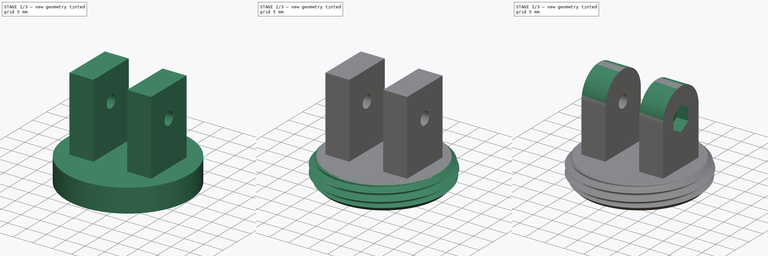
[diagram: build sequence overview — one tinted view per stage of 3, left to right]
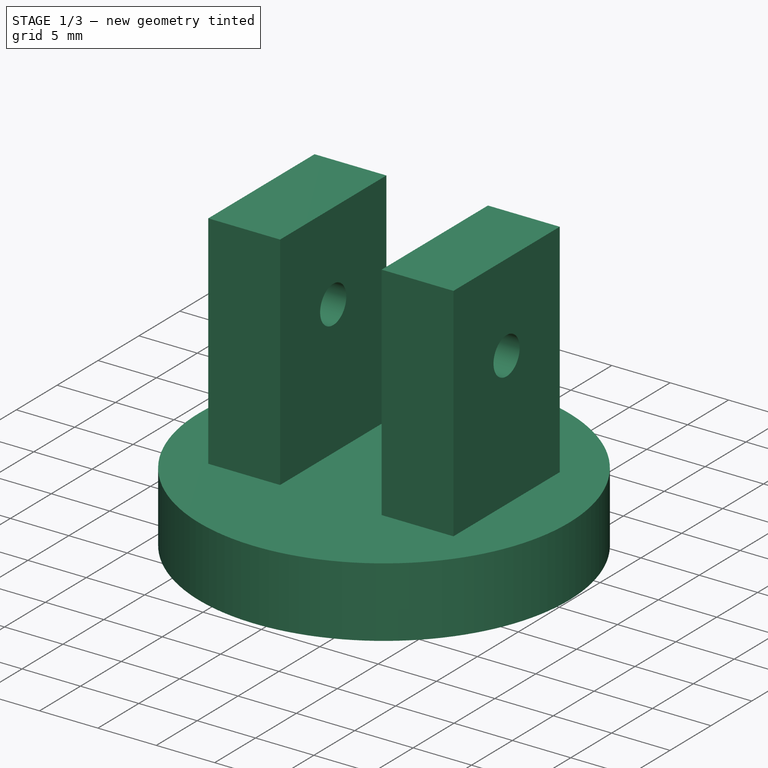
[diagram: stage 1 of 3 — iso view after this stage's code; geometry added in this stage tinted green]
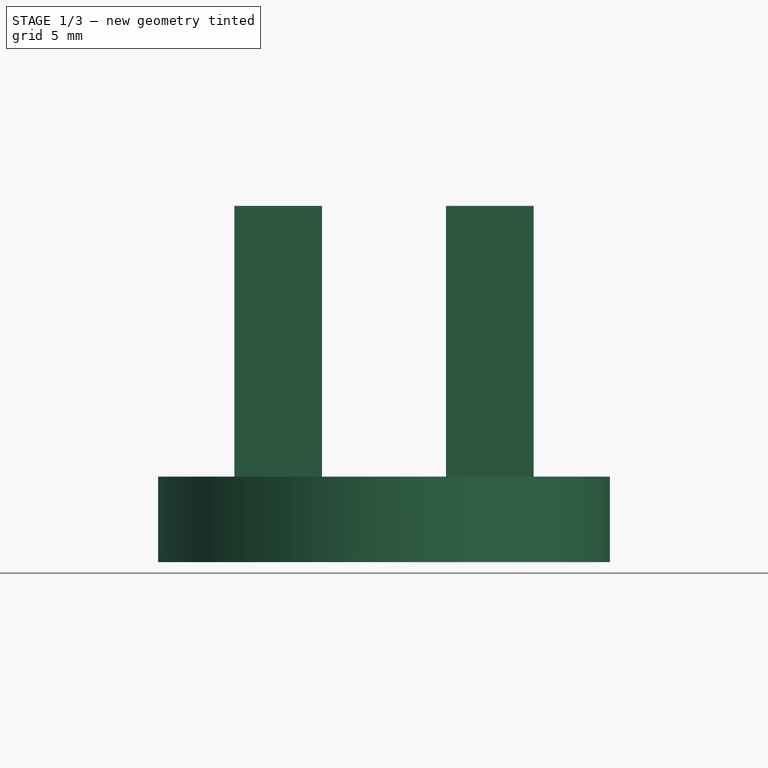
[diagram: stage 1 of 3 — front view after this stage's code; geometry added in this stage tinted green]
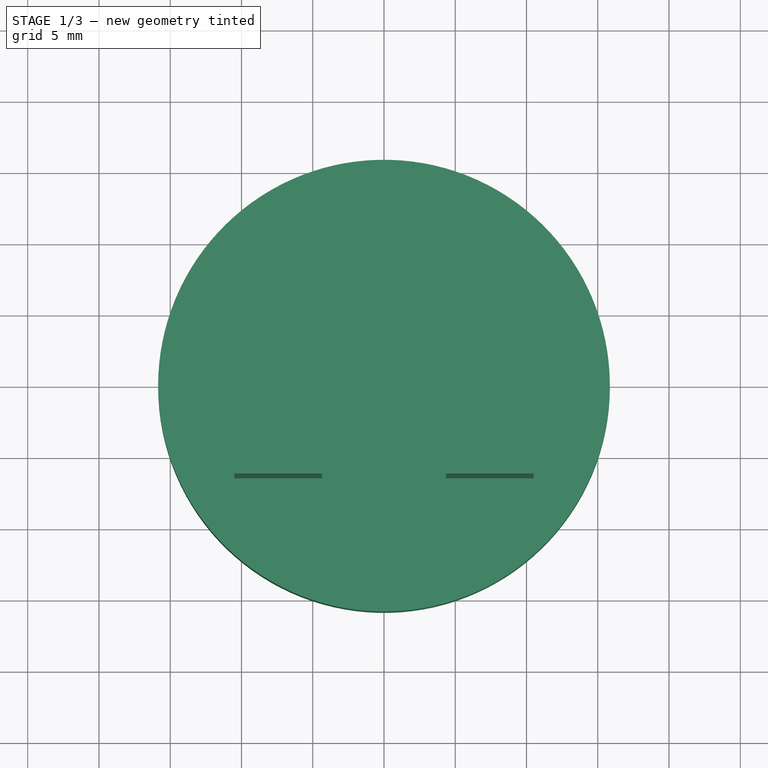
[diagram: stage 1 of 3 — top view after this stage's code; geometry added in this stage tinted green]
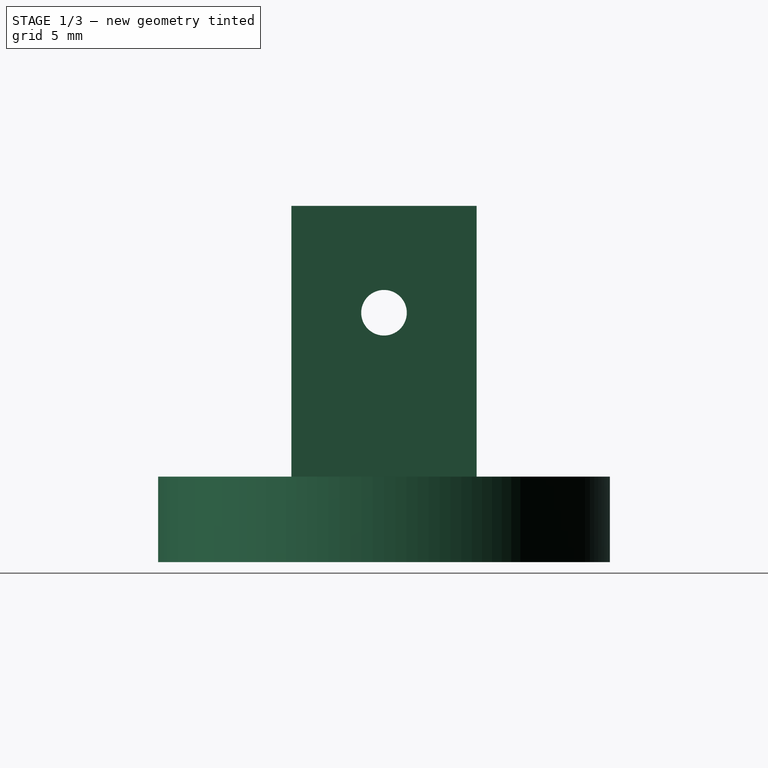
[diagram: stage 1 of 3 — right view after this stage's code; geometry added in this stage tinted green]
FCSTD DOCUMENT  (FreeCAD 0.18R16117 (Git))
Label: Slider
License: CreativeCommons Attribution-ShareAlike
LicenseURL: http://creativecommons.org/licenses/by-sa/4.0/
objects: Sketcher::SketchObject×7, PartDesign::Pocket×4, PartDesign::Point×3, PartDesign::Pad×1, Part::Helix×1, PartDesign::Groove×1, PartDesign::ShapeBinder×1, PartDesign::SubtractivePipe×1, PartDesign::Fillet×1, PartDesign::Body×1
note: 28 computed .brp shape members not serialized (recipe doc carries the construction recipe); baked Part::Feature solids carry a one-line shape summary decoded from their .brp

FEATURE [Sketcher::SketchObject] Sketch
  MapMode = 5
  Support = -> [XY_Plane]
  sketch-geometry (1):
    g0: Circle CenterX=0 CenterY=0 CenterZ=0 NormalX=0 NormalY=0 NormalZ=1 AngleXU=0 Radius=15.85
  constraints (2):
    c: Coincident(g0,g-1)
    c: Radius(g0) = 15.85
FEATURE [PartDesign::Pad] Pad  label="Threadplate"
  Length = 25
  Length2 = 100
  Profile = -> Sketch
  Refine = true
  Type = 0
FEATURE [PartDesign::Point] DatumPoint
  AttacherType = Attacher::AttachEnginePoint
  MapMode = 37
  Placement = pos=(15.85,0,25) rot=(0,0,1;0rad)
  Support = -> [Pad]
FEATURE [Sketcher::SketchObject] Sketch001
  ExternalGeometry = -> [DatumPoint]
  MapMode = 5
  Placement = pos=(0,0,25) rot=(0,0,1;0rad)
  Support = -> [Pad]
  sketch-geometry (10):
    g0: Circle CenterX=0 CenterY=0 CenterZ=0 NormalX=0 NormalY=0 NormalZ=1 AngleXU=0 Radius=16.35
    g1: GeomPoint X=16.35 Y=0 Z=0
    g2: LineSegment StartX=-10.5 StartY=6.5 StartZ=0 EndX=-4.35 EndY=6.5 EndZ=0
    g3: LineSegment StartX=-4.35 StartY=6.5 StartZ=0 EndX=-4.35 EndY=-6.5 EndZ=0
    g4: LineSegment StartX=-4.35 StartY=-6.5 StartZ=0 EndX=-10.5 EndY=-6.5 EndZ=0
    g5: LineSegment StartX=-10.5 StartY=-6.5 StartZ=0 EndX=-10.5 EndY=6.5 EndZ=0
    g6: LineSegment StartX=4.35 StartY=6.5 StartZ=0 EndX=10.5 EndY=6.5 EndZ=0
    g7: LineSegment StartX=10.5 StartY=6.5 StartZ=0 EndX=10.5 EndY=-6.5 EndZ=0
    g8: LineSegment StartX=10.5 StartY=-6.5 StartZ=0 EndX=4.35 EndY=-6.5 EndZ=0
    g9: LineSegment StartX=4.35 StartY=-6.5 StartZ=0 EndX=4.35 EndY=6.5 EndZ=0
  constraints (27):
    c: Coincident(g0,g-1)
    c: PointOnObject(g1,g-1)
    c: PointOnObject(g1,g0)
    c: DistanceX(g-3,g1) = 0.5
    c: Coincident(g2,g3)
    c: Coincident(g3,g4)
    c: Coincident(g4,g5)
    c: Coincident(g5,g2)
    c: Horizontal(g2)
    c: Horizontal(g4)
    c: Vertical(g3)
    c: Vertical(g5)
    c: Coincident(g6,g7)
    c: Coincident(g7,g8)
    c: Coincident(g8,g9)
    c: Coincident(g9,g6)
    c: Horizontal(g6)
    c: Horizontal(g8)
    c: Vertical(g7)
    c: Vertical(g9)
    c: Equal(g6,g2)
    c: Equal(g5,g7)
    c: Symmetric(g2,g4,g-1)
    c: Symmetric(g2,g6,g-2)
    c: DistanceY(g7,g7) = 13
    c: DistanceX(g2,g6) = 8.7
    c: DistanceX(g4,g7) = 21
FEATURE [PartDesign::Pocket] Pocket  label="Rollholder"
  BaseFeature = -> Pad
  Length = 19
  Length2 = 100
  Profile = -> Sketch001
  Refine = true
  Type = 0
FEATURE [Sketcher::SketchObject] Sketch002
  ExternalGeometry = -> [DatumPoint]
  MapMode = 5
  Placement = pos=(0,0,0) rot=(0.57735,0.57735,0.57735;2.0944rad)
  Support = -> [YZ_Plane]
  sketch-geometry (1):
    g0: Circle CenterX=0 CenterY=17.5 CenterZ=0 NormalX=0 NormalY=0 NormalZ=1 AngleXU=0 Radius=1.6
  constraints (3):
    c: PointOnObject(g0,g-2)
    c: DistanceY(g0,g-3) = 7.5
    c: Radius(g0) = 1.6
FEATURE [PartDesign::Pocket] Pocket001  label="Bore"
  BaseFeature = -> Pocket
  Length = 26
  Length2 = 100
  Midplane = true
  Profile = -> Sketch002
  Refine = true
  Type = 0
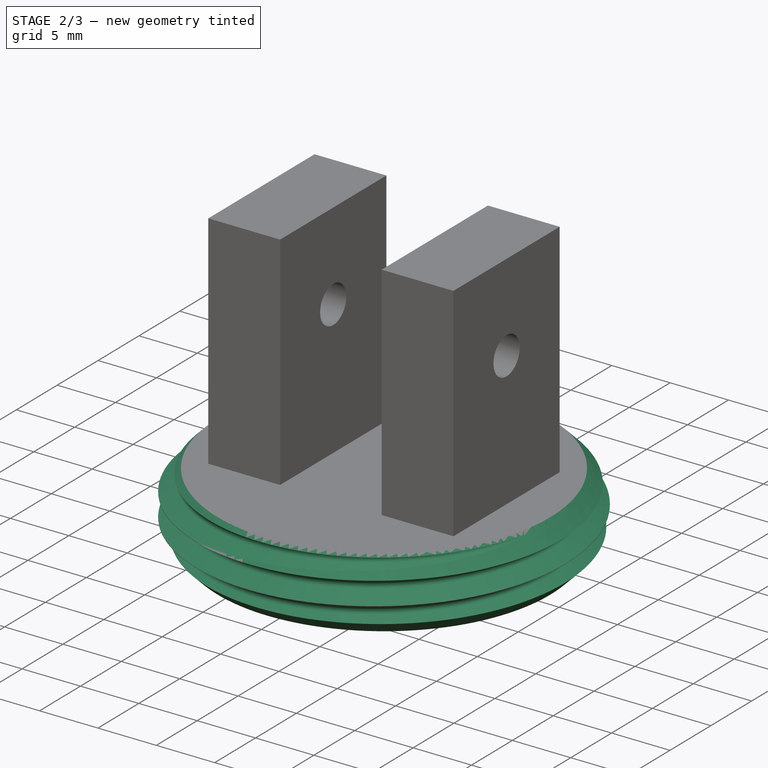
[diagram: stage 2 of 3 — iso view after this stage's code; geometry added in this stage tinted green]
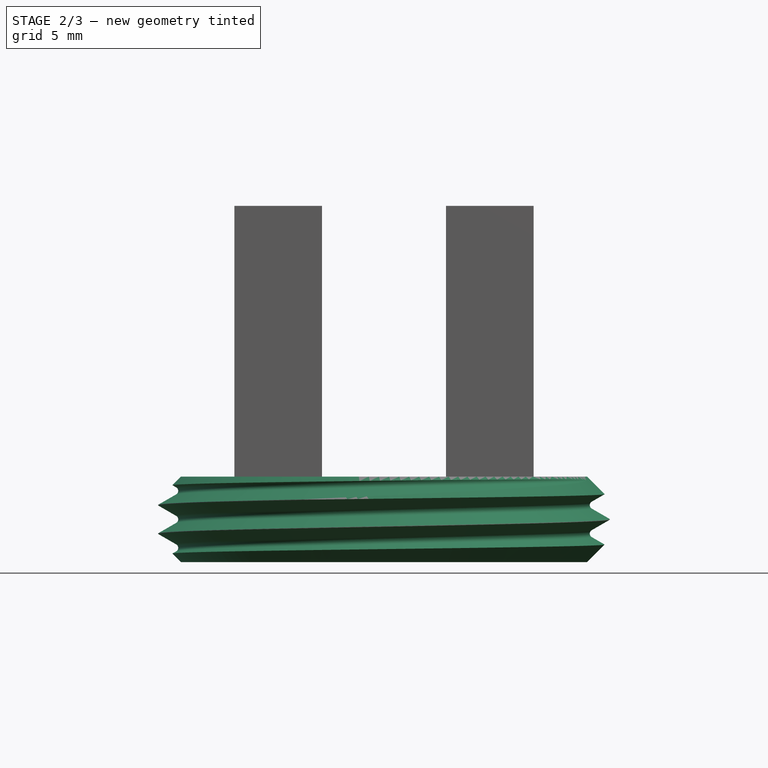
[diagram: stage 2 of 3 — front view after this stage's code; geometry added in this stage tinted green]
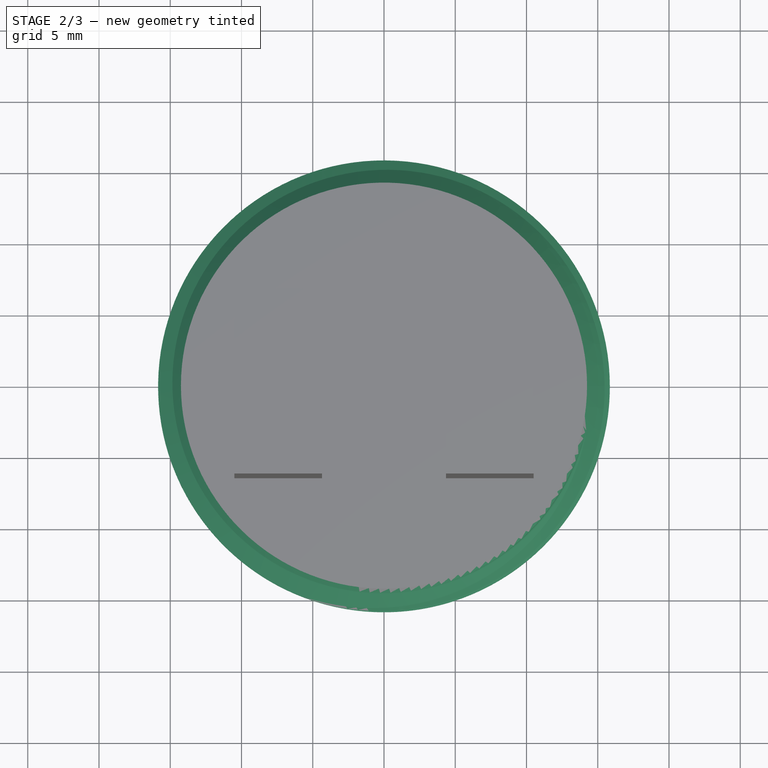
[diagram: stage 2 of 3 — top view after this stage's code; geometry added in this stage tinted green]
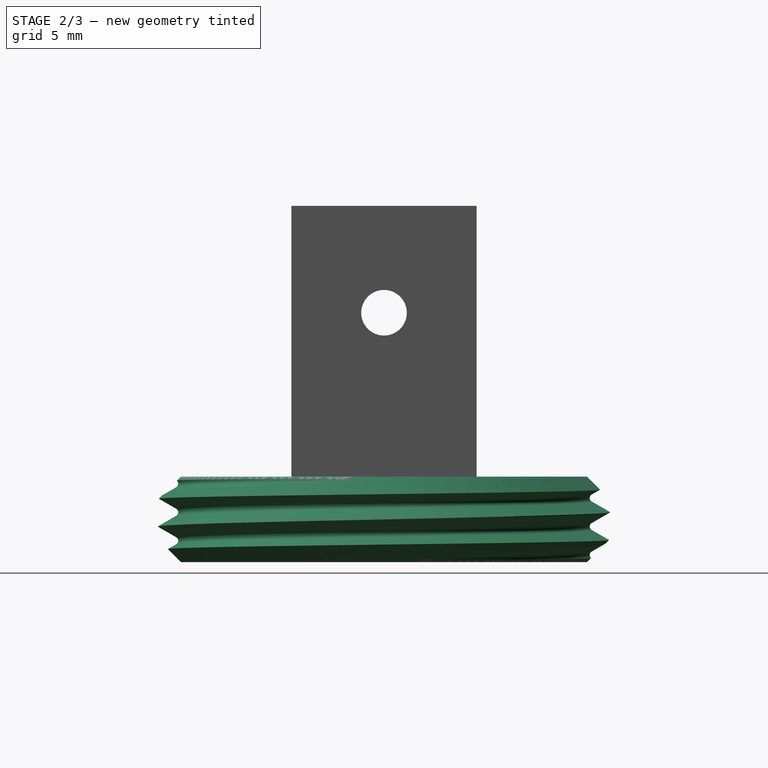
[diagram: stage 2 of 3 — right view after this stage's code; geometry added in this stage tinted green]
FEATURE [Part::Helix] Helix
  Angle = 0
  AttacherType = Attacher::AttachEngine3D
  Height = 10
  LocalCoord = 0
  Pitch = 2
  Placement = pos=(0,0,-2) rot=(0,0,1;0rad)
  Radius = 15.351
  Style = 1
FEATURE [PartDesign::Point] DatumPoint001
  AttacherType = Attacher::AttachEnginePoint
  MapMode = 37
  Placement = pos=(15.85,0,6) rot=(0,0,1;0rad)
  Support = -> [Pocket001]
FEATURE [PartDesign::Point] DatumPoint002
  AttacherType = Attacher::AttachEnginePoint
  MapMode = 37
  Placement = pos=(15.85,0,0) rot=(0,0,1;0rad)
  Support = -> [Pocket001]
FEATURE [Sketcher::SketchObject] Sketch003
  ExternalGeometry = -> [DatumPoint001,DatumPoint002]
  MapMode = 5
  Placement = pos=(0,0,0) rot=(1,0,0;1.5708rad)
  Support = -> [XZ_Plane]
  sketch-geometry (7):
    g0: LineSegment StartX=14.15 StartY=6.1 StartZ=0 EndX=16.85 EndY=3.4 EndZ=0
    g1: LineSegment StartX=16.85 StartY=3.4 StartZ=0 EndX=16.85 EndY=2.6 EndZ=0
    g2: LineSegment StartX=16.85 StartY=2.6 StartZ=0 EndX=14.15 EndY=-0.1 EndZ=0
    g3: LineSegment StartX=14.15 StartY=-0.1 StartZ=0 EndX=17.85 EndY=-0.1 EndZ=0
    g4: LineSegment StartX=17.85 StartY=-0.1 StartZ=0 EndX=17.85 EndY=6.1 EndZ=0
    g5: LineSegment StartX=17.85 StartY=6.1 StartZ=0 EndX=14.15 EndY=6.1 EndZ=0
    g6: LineSegment [constr] StartX=15.85 StartY=6 StartZ=0 EndX=15.85 EndY=4.4 EndZ=0
  constraints (21):
    c: Coincident(g0,g1)
    c: Vertical(g1)
    c: Coincident(g1,g2)
    c: Coincident(g2,g3)
    c: Horizontal(g3)
    c: Coincident(g3,g4)
    c: Vertical(g4)
    c: Coincident(g4,g5)
    c: Coincident(g5,g0)
    c: Horizontal(g5)
    c: Equal(g3,g5)
    c: Equal(g2,g0)
    c: Angle(g3,g2) = 0.785398
    c: DistanceY(g3,g-4) = 0.1
    c: DistanceY(g-3,g4) = 0.1
    c: Coincident(g6,g-3)
    c: Vertical(g6)
    c: DistanceY(g6,g6) = 1.6
    c: PointOnObject(g6,g0)
    c: DistanceX(g6,g0) = 1
    c: DistanceX(g0,g4) = 1
FEATURE [PartDesign::Groove] Groove  label="Thread-Champfer"
  Angle = 360
  Axis = (0,0,1)
  Base = (0,0,0)
  BaseFeature = -> Pocket001
  Profile = -> Sketch003
  ReferenceAxis = -> Sketch003 [V_Axis]
  Refine = true
FEATURE [Sketcher::SketchObject] Sketch004
  MapMode = 5
  Placement = pos=(0,0,0) rot=(1,0,0;1.5708rad)
  Support = -> [XZ_Plane]
  sketch-geometry (8):
    g0: LineSegment StartX=15.881 StartY=-1 StartZ=0 EndX=15.881 EndY=-3 EndZ=0
    g1: ArcOfCircle CenterX=14.7289 CenterY=-2 CenterZ=0 NormalX=0 NormalY=0 NormalZ=1 AngleXU=0 Radius=0.29 StartAngle=2.0944 EndAngle=4.18879
    g2: LineSegment StartX=14.5839 StartY=-2.25115 StartZ=0 EndX=15.881 EndY=-3 EndZ=0
    g3: LineSegment StartX=14.5839 StartY=-1.74885 StartZ=0 EndX=15.881 EndY=-1 EndZ=0
    g4: LineSegment [constr] StartX=15.881 StartY=-1 StartZ=0 EndX=14.1489 EndY=-2 EndZ=0
    g5: LineSegment [constr] StartX=14.1489 StartY=-2 StartZ=0 EndX=15.881 EndY=-3 EndZ=0
    g6: GeomPoint X=15.16 Y=-2 Z=0
    g7: LineSegment [constr] StartX=14.4389 StartY=-2 StartZ=0 EndX=15.881 EndY=-2 EndZ=0
  constraints (22):
    c: Vertical(g0)
    c: Tangent(g3,g1) = 1.5708
    c: Tangent(g2,g1) = -1.5708
    c: Angle(g2,g3) = 1.0472
    c: Radius(g1) = 0.29
    c: Coincident(g4,g0)
    c: Coincident(g5,g4)
    c: Coincident(g5,g0)
    c: Equal(g5,g4)
    c: Equal(g4,g0)
    c: DistanceY(g4,g-1) = 2
    c: Coincident(g0,g3)
    c: Coincident(g2,g0)
    c: PointOnObject(g1,g5)
    c: DistanceY(g0,g0) = 2
    c: DistanceX(g-1,g6) = 15.16
    c: PointOnObject(g7,g1)
    c: PointOnObject(g7,g0)
    c: Horizontal(g7)
    c: PointOnObject(g6,g7)
    c: DistanceX(g6,g0) = 0.721
    c: PointOnObject(g4,g7)
FEATURE [PartDesign::ShapeBinder] CopyHelix
  Placement = pos=(0,0,-2) rot=(0,0,1;0rad)
  TraceSupport = false
FEATURE [PartDesign::SubtractivePipe] SubtractivePipe
  AuxilleryCurvelinear = true
  AuxillerySpineTangent = false
  BaseFeature = -> Groove
  Binormal = (0,0,0)
  Mode = 2
  Profile = -> Sketch004
  Refine = true
  Spine = -> CopyHelix [Edge1,Edge2,Edge3,Edge4,Edge5]
  SpineTangent = false
  Transformation = 0
  Transition = 0
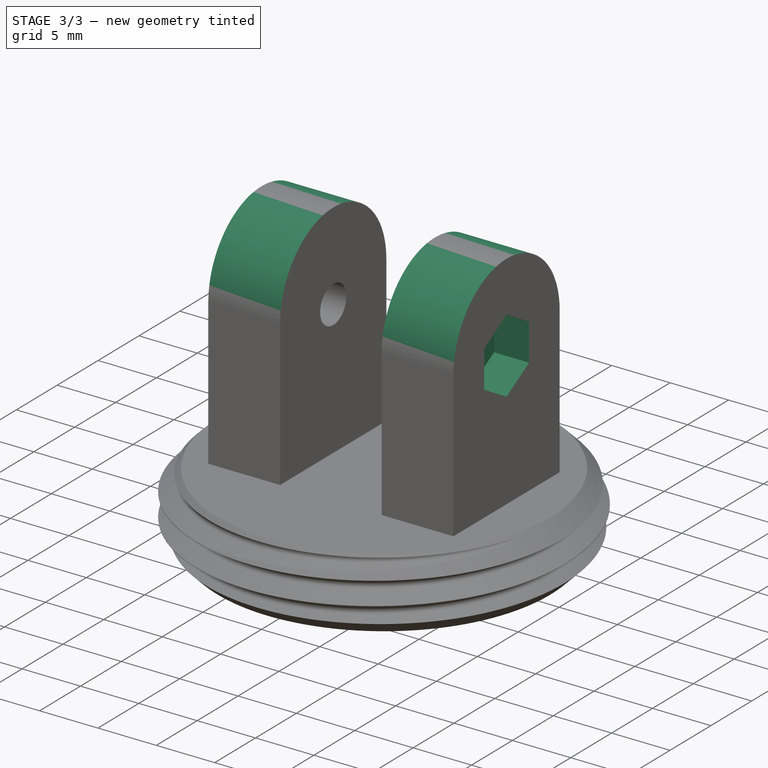
[diagram: stage 3 of 3 — iso view after this stage's code; geometry added in this stage tinted green]
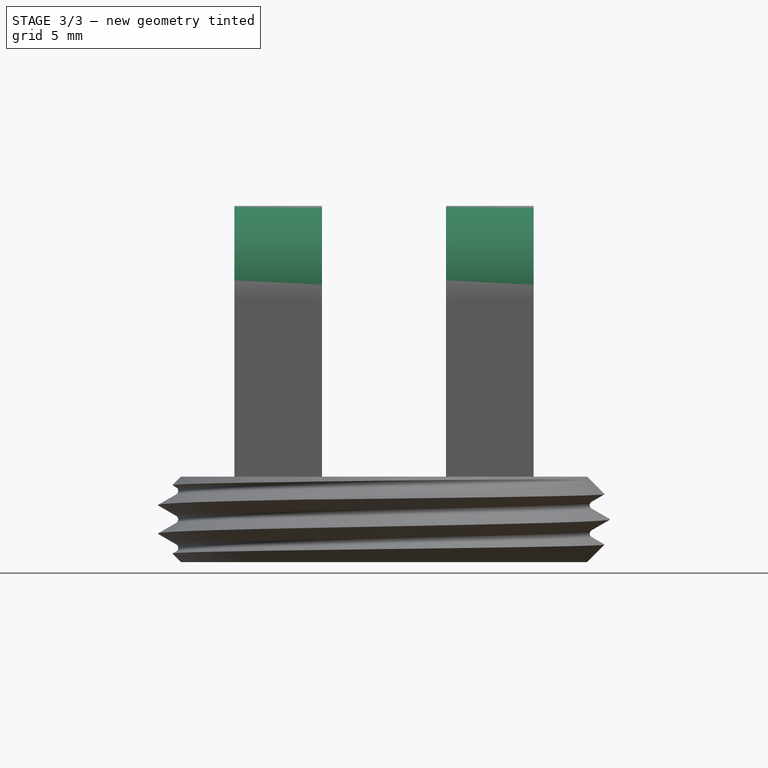
[diagram: stage 3 of 3 — front view after this stage's code; geometry added in this stage tinted green]
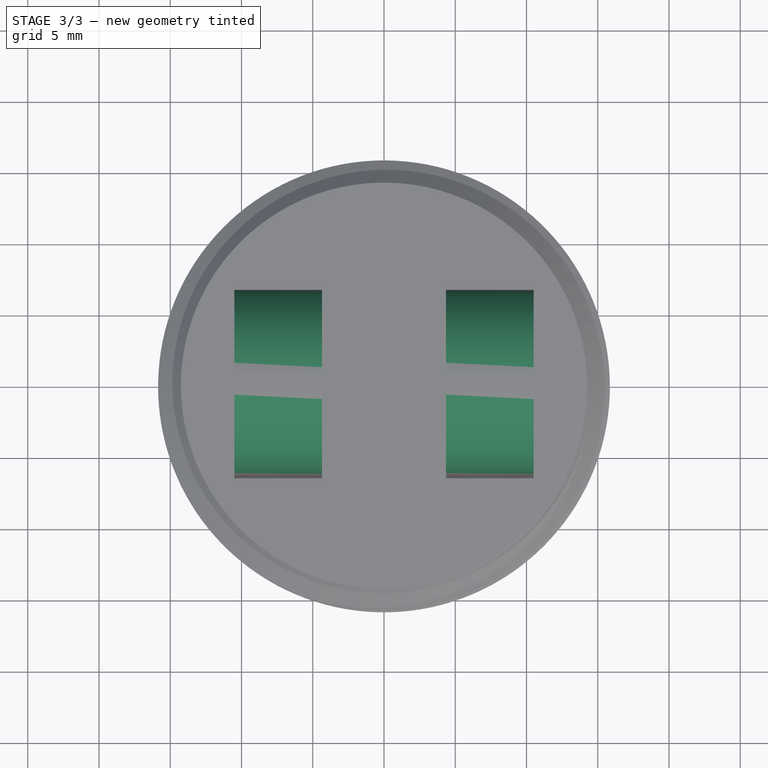
[diagram: stage 3 of 3 — top view after this stage's code; geometry added in this stage tinted green]
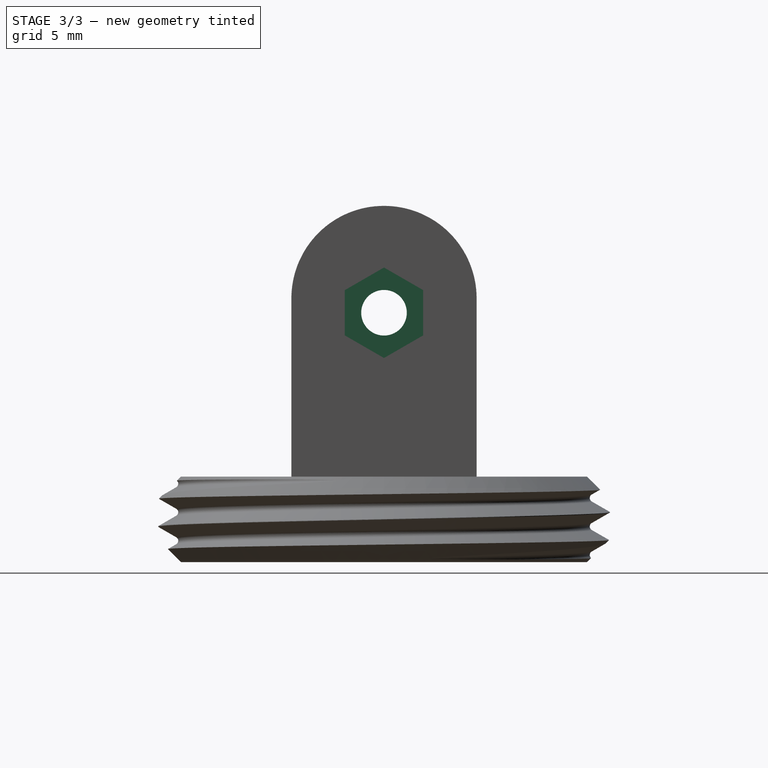
[diagram: stage 3 of 3 — right view after this stage's code; geometry added in this stage tinted green]
FEATURE [PartDesign::Fillet] Fillet  label="FilletByRoll"
  Base = -> SubtractivePipe [Edge58,Edge50,Edge40,Edge48]
  BaseFeature = -> SubtractivePipe
  Radius = 6.49
FEATURE [Sketcher::SketchObject] Sketch005
  ExternalGeometry = -> [Fillet]
  MapMode = 5
  Placement = pos=(-10.5,0,0) rot=(0.57735,-0.57735,-0.57735;2.0944rad)
  Support = -> [Fillet]
  sketch-geometry (1):
    g0: Circle CenterX=0 CenterY=17.5 CenterZ=0 NormalX=0 NormalY=0 NormalZ=1 AngleXU=0 Radius=3
  constraints (2):
    c: Coincident(g0,g-3)
    c: Radius(g0) = 3
FEATURE [PartDesign::Pocket] Pocket002
  BaseFeature = -> Fillet
  Length = 3
  Length2 = 100
  Profile = -> Sketch005
  Refine = true
  Type = 0
FEATURE [Sketcher::SketchObject] Sketch006
  ExternalGeometry = -> [Pocket002]
  MapMode = 5
  Placement = pos=(10.5,0,0) rot=(0.57735,0.57735,0.57735;2.0944rad)
  Support = -> [Pocket002]
  sketch-geometry (7):
    g0: LineSegment StartX=0 StartY=20.6754 StartZ=0 EndX=-2.75 EndY=19.0877 EndZ=0
    g1: LineSegment StartX=-2.75 StartY=19.0877 StartZ=0 EndX=-2.75 EndY=15.9123 EndZ=0
    g2: LineSegment StartX=-2.75 StartY=15.9123 StartZ=0 EndX=0 EndY=14.3246 EndZ=0
    g3: LineSegment StartX=0 StartY=14.3246 StartZ=0 EndX=2.75 EndY=15.9123 EndZ=0
    g4: LineSegment StartX=2.75 StartY=15.9123 StartZ=0 EndX=2.75 EndY=19.0877 EndZ=0
    g5: LineSegment StartX=2.75 StartY=19.0877 StartZ=0 EndX=0 EndY=20.6754 EndZ=0
    g6: Circle [constr] CenterX=0 CenterY=17.5 CenterZ=0 NormalX=0 NormalY=0 NormalZ=1 AngleXU=0 Radius=3.17543
  constraints (16):
    c: Coincident(g0,g1)
    c: Coincident(g1,g2)
    c: Coincident(g2,g3)
    c: Coincident(g3,g4)
    c: Coincident(g4,g5)
    c: Coincident(g5,g0)
    c: Equal(g0, g1-g5) x5
    c: PointOnObject(g0,g6)
    c: PointOnObject(g1,g6)
    c: PointOnObject(g2,g6)
    c: PointOnObject(g3,g6)
    c: PointOnObject(g4,g6)
    c: PointOnObject(g5,g6)
    c: Coincident(g6,g-3)
    c: PointOnObject(g5,g-2)
    c: DistanceX(g0,g4) = 5.5
FEATURE [PartDesign::Pocket] Pocket003
  BaseFeature = -> Pocket002
  Length = 3
  Length2 = 100
  Profile = -> Sketch006
  Refine = true
  Type = 0
FEATURE [PartDesign::Body] Body  label="Slider"
  Group = -> [Sketch,Pad,DatumPoint,Sketch001,Pocket,Sketch002,Pocket001,Sketch003,DatumPoint001,DatumPoint002,Groove,Sketch004,SubtractivePipe,CopyHelix,Fillet,Sketch005,Pocket002,Sketch006,Pocket003]
  Origin = -> Origin
  Tip = -> Pocket003
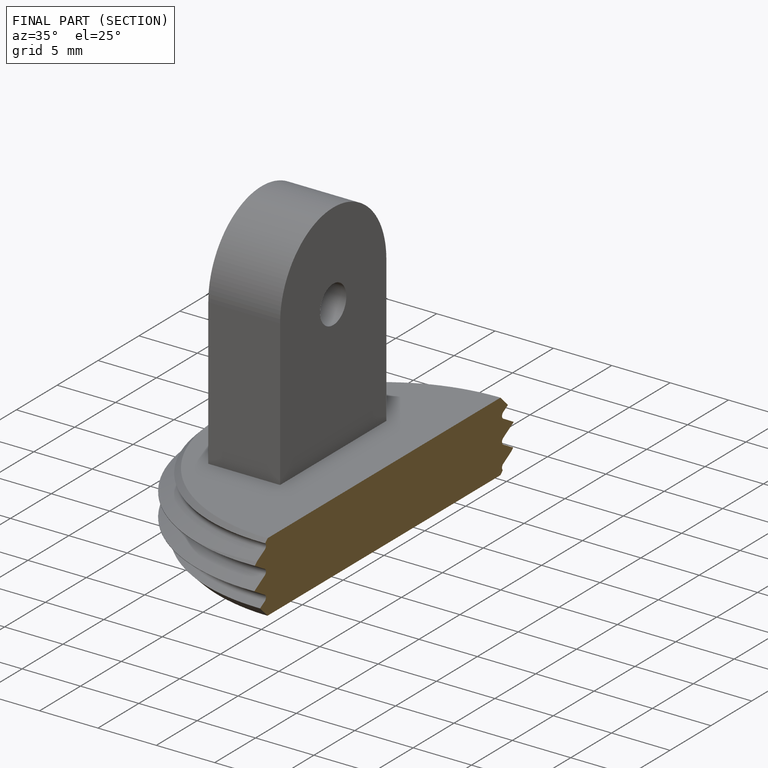
[diagram: finished part — half-section view (interior)]
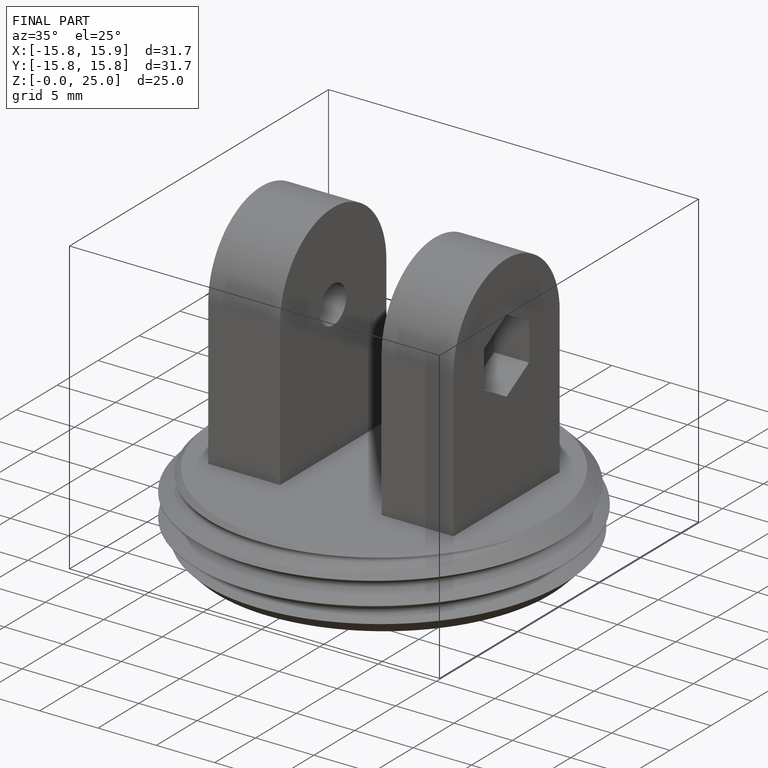
[diagram: finished part — iso view with bounding-box wireframe]
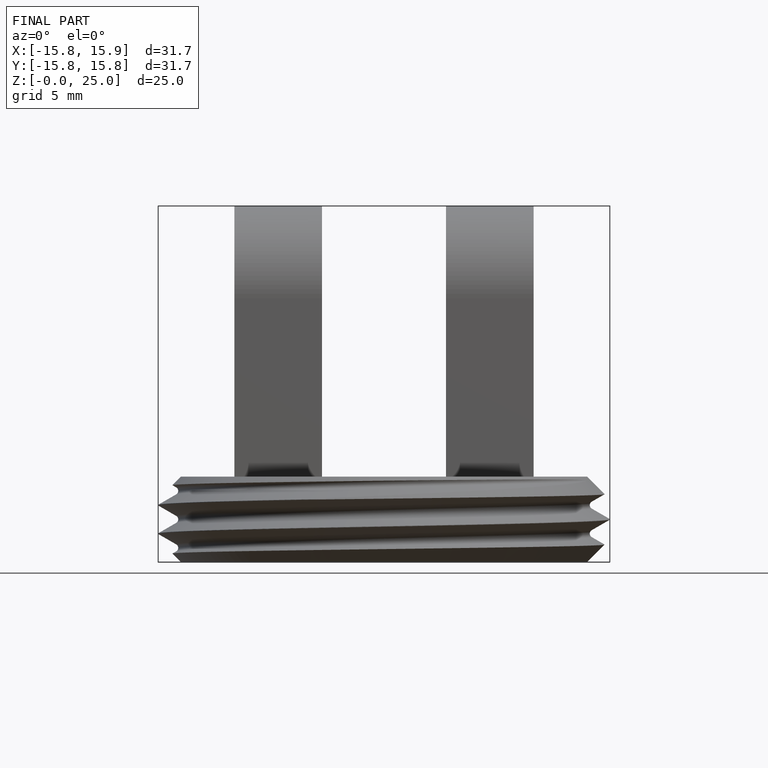
[diagram: finished part — front view with bounding-box wireframe]
